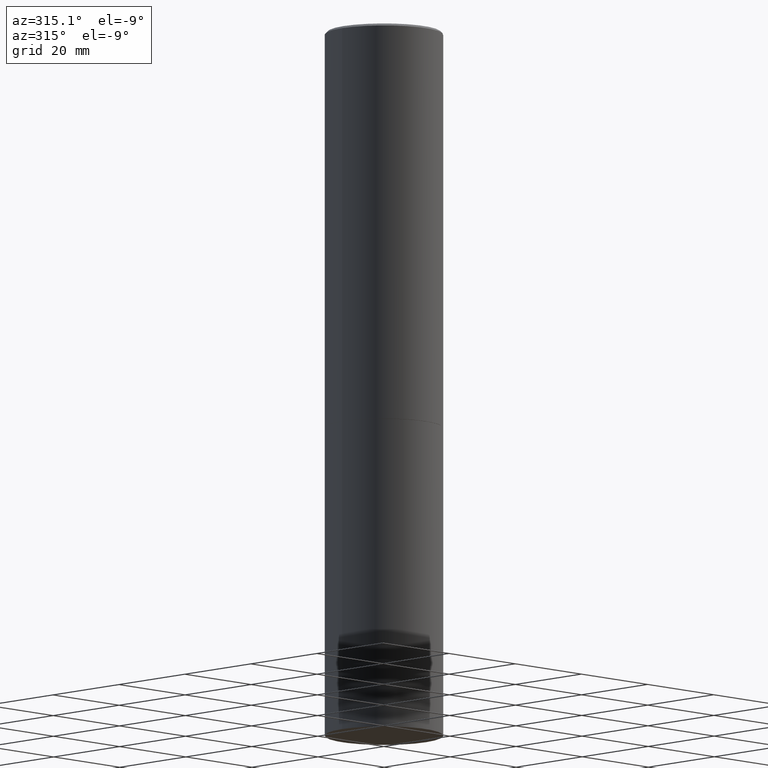
[diagram: clean part render]
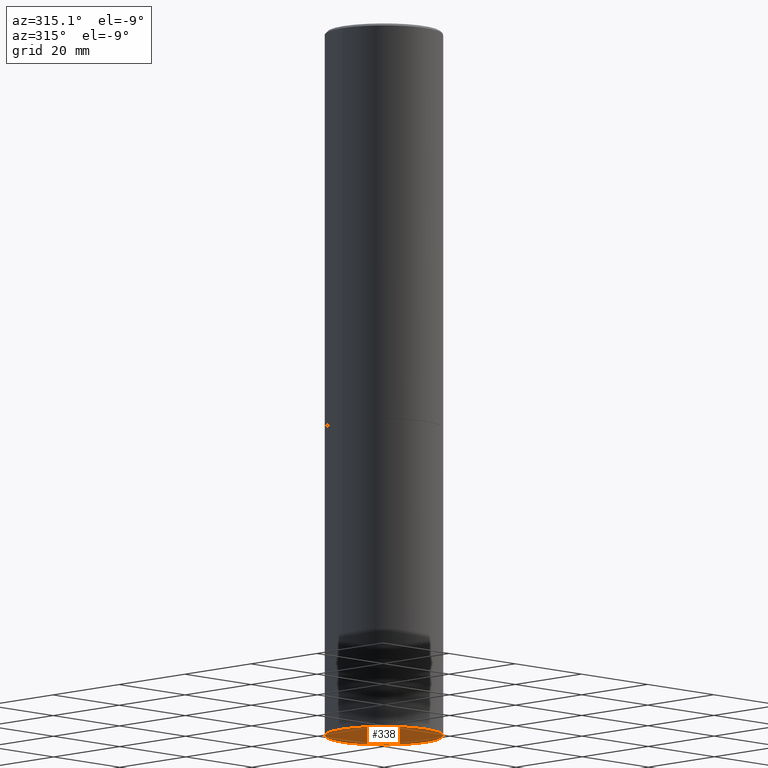
[diagram: same view with one face highlighted and labeled with its STEP entity id]
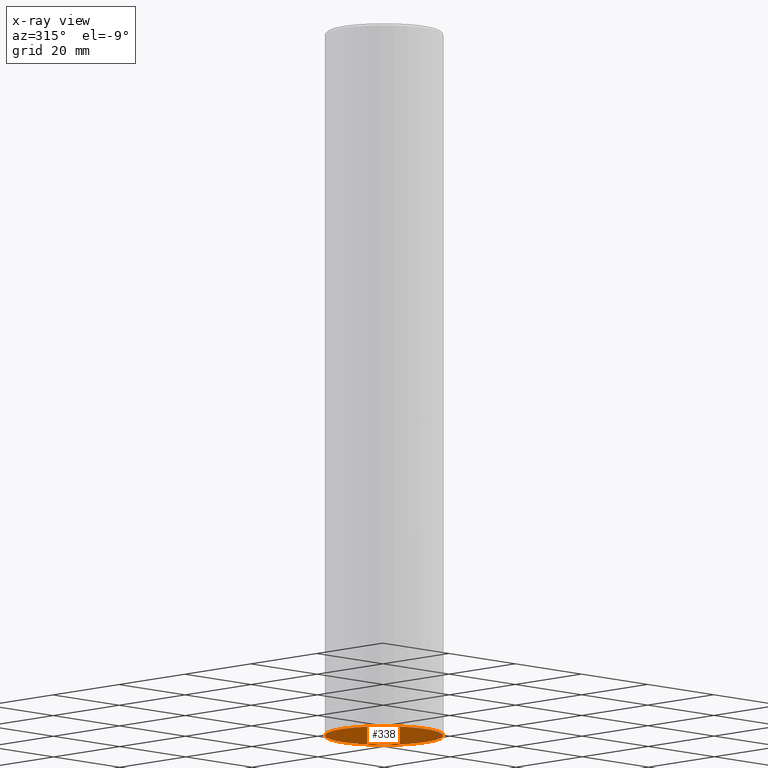
[diagram: x-ray of the same camera — body ghosted, the highlighted face saturated]
A machine part, auxiliary view. The second image highlights one B-rep face of the part: STEP entity #338.
The next image is the same camera in x-ray: the body ghosted, the highlighted face saturated — about 0% of this face is hidden behind the body in this view.
In plain terms, the highlighted planar face has unit normal (0, -0, -1).
Its self-contained STEP definition (entity closure, byte-faithful):
#15 = CARTESIAN_POINT ( 'NONE',  ( 0.5000000000000000000, -2.444036937190200606E-14, -6.000000000000000888 ) ) ;
#37 = CARTESIAN_POINT ( 'NONE',  ( 3.491481338843279295E-15, 0.4999999999999790168, -6.000000000000002665 ) ) ;
#46 = AXIS2_PLACEMENT_3D ( 'NONE', #37, #241, #238 ) ;
#65 = VERTEX_POINT ( 'NONE', #15 ) ;
#69 = CARTESIAN_POINT ( 'NONE',  ( 1.467281283711081958E-28, -2.094888803305887271E-14, -6.000000000000000888 ) ) ;
#77 = EDGE_CURVE ( 'NONE', #108, #65, #155, .T. ) ;
#81 = EDGE_CURVE ( 'NONE', #65, #108, #205, .T. ) ;
#97 = CARTESIAN_POINT ( 'NONE',  ( -0.5000000000000000000, -1.281360509702674426E-14, -6.000000000000000888 ) ) ;
#108 = VERTEX_POINT ( 'NONE', #97 ) ;
#114 = FACE_OUTER_BOUND ( 'NONE', #214, .T. ) ;
#143 = CARTESIAN_POINT ( 'NONE',  ( 1.467281283711081958E-28, -2.094888803305887271E-14, -6.000000000000000888 ) ) ;
#155 = CIRCLE ( 'NONE', #215, 0.5000000000000000000 ) ;
#189 = DIRECTION ( 'NONE',  ( -2.445468806185136597E-29, 3.491481338843145583E-15, 1.000000000000000000 ) ) ;
#205 = CIRCLE ( 'NONE', #324, 0.5000000000000000000 ) ;
#214 = EDGE_LOOP ( 'NONE', ( #233, #334 ) ) ;
#215 = AXIS2_PLACEMENT_3D ( 'NONE', #69, #189, #248 ) ;
#233 = ORIENTED_EDGE ( 'NONE', *, *, #81, .F. ) ;
#238 = DIRECTION ( 'NONE',  ( -1.000000000000000000, 6.982962677686265922E-15, -4.876176775795935793E-29 ) ) ;
#241 = DIRECTION ( 'NONE',  ( 2.438088387897960049E-29, -3.491481338843145188E-15, -1.000000000000000000 ) ) ;
#248 = DIRECTION ( 'NONE',  ( 1.000000000000000000, -6.982962677686262766E-15, 0.000000000000000000 ) ) ;
#266 = PLANE ( 'NONE',  #46 ) ;
#322 = DIRECTION ( 'NONE',  ( 1.000000000000000000, -6.982962677686262766E-15, 0.000000000000000000 ) ) ;
#324 = AXIS2_PLACEMENT_3D ( 'NONE', #143, #352, #322 ) ;
#334 = ORIENTED_EDGE ( 'NONE', *, *, #77, .F. ) ;
#338 = ADVANCED_FACE ( 'NONE', ( #114 ), #266, .T. ) ;
#352 = DIRECTION ( 'NONE',  ( -2.445468806185136597E-29, 3.491481338843145583E-15, 1.000000000000000000 ) ) ;